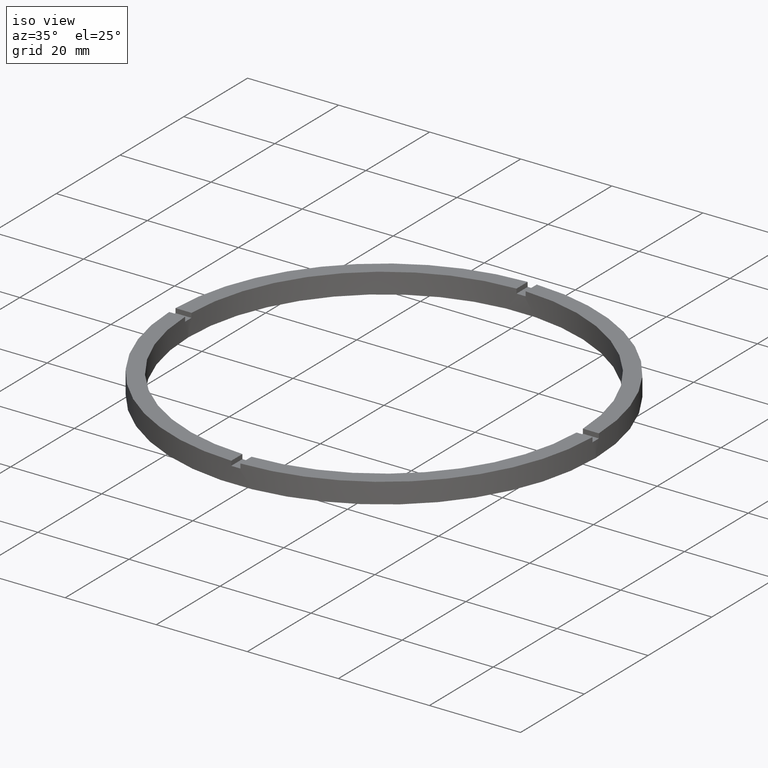
[diagram: clean part render]
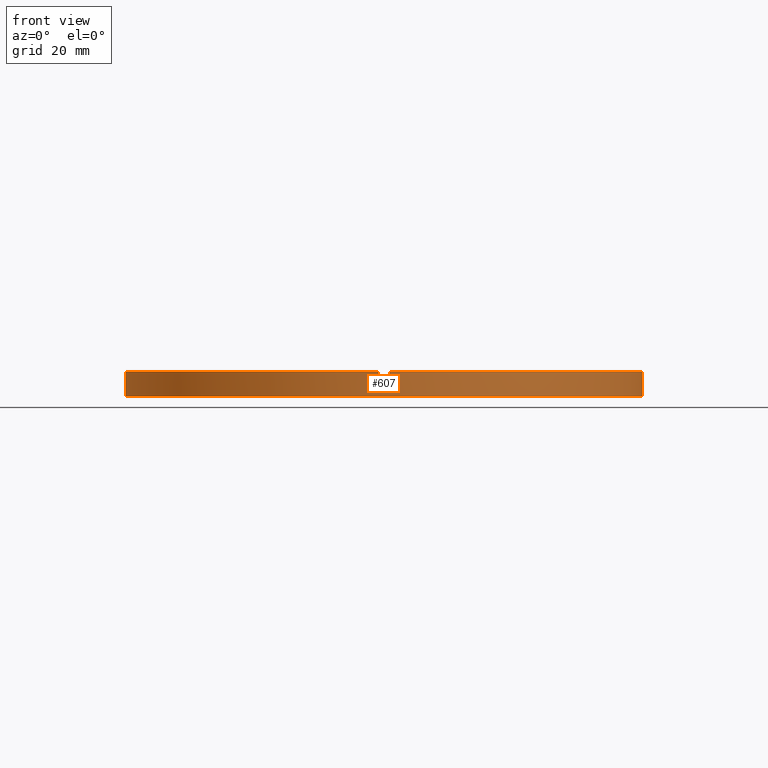
[diagram: tour spotlight — one face highlighted and labeled with its STEP entity id]
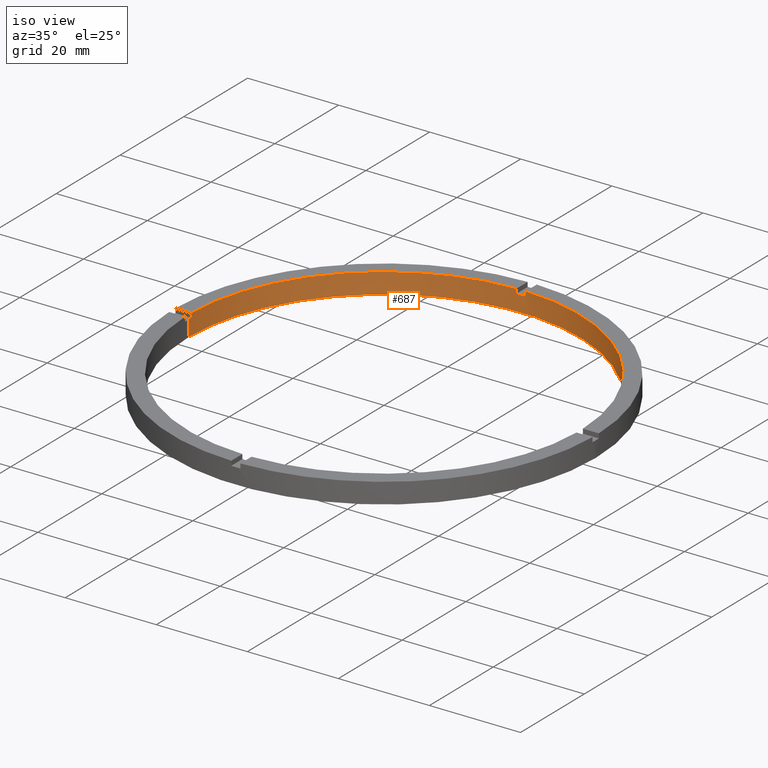
[diagram: tour spotlight — one face highlighted and labeled with its STEP entity id]
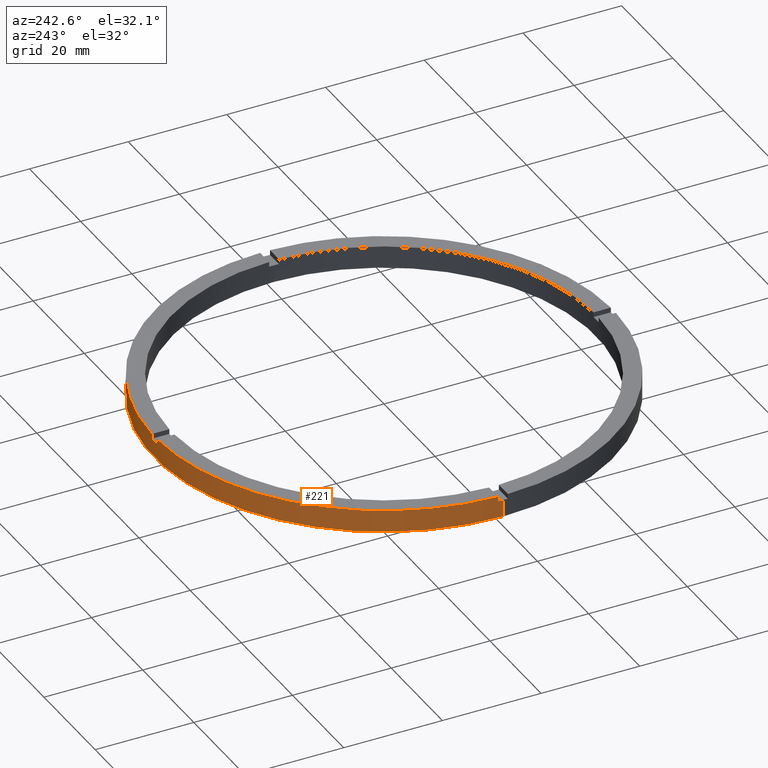
[diagram: tour spotlight — one face highlighted and labeled with its STEP entity id]
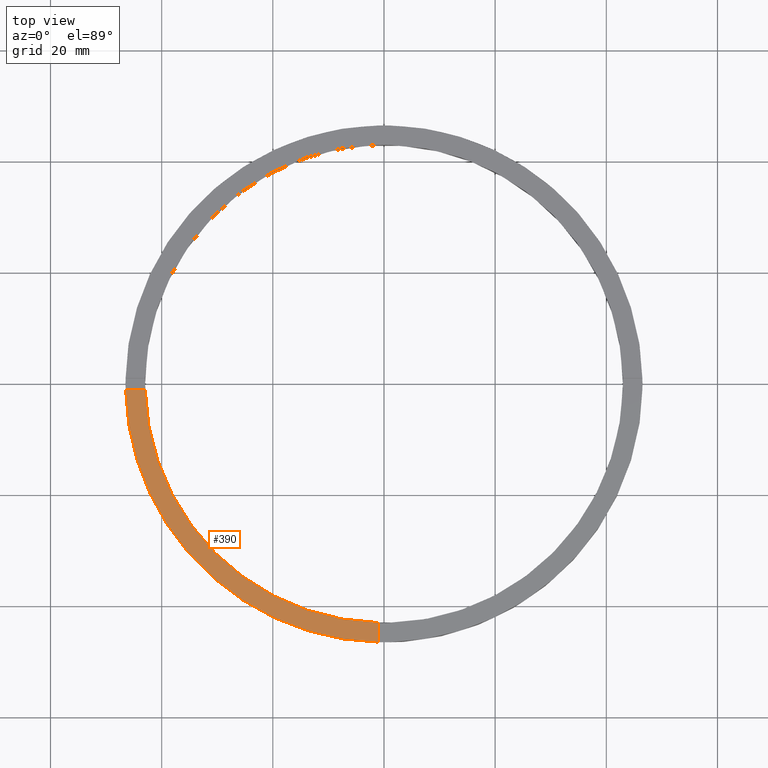
[diagram: tour spotlight — one face highlighted and labeled with its STEP entity id]
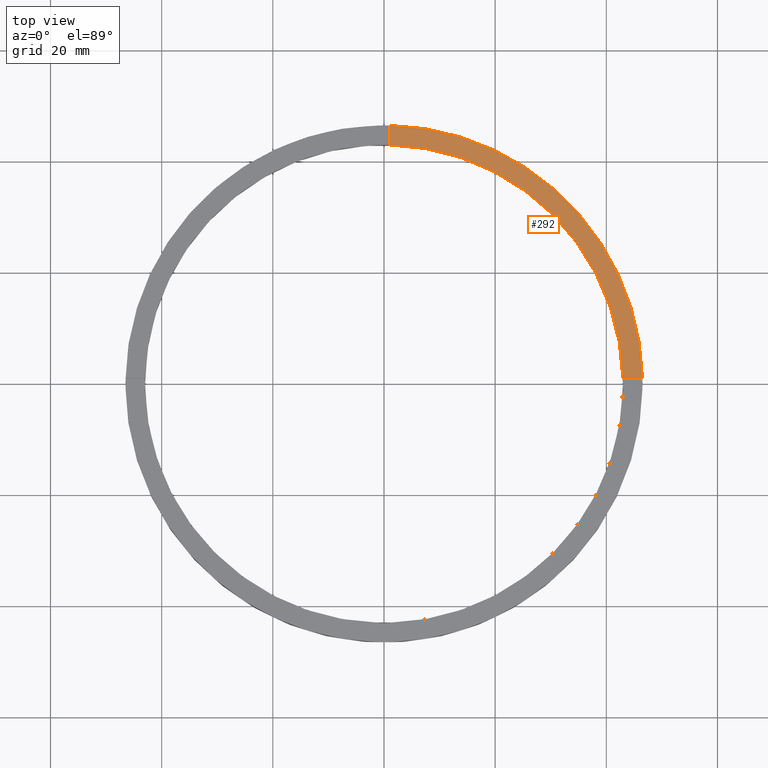
[diagram: tour spotlight — one face highlighted and labeled with its STEP entity id]
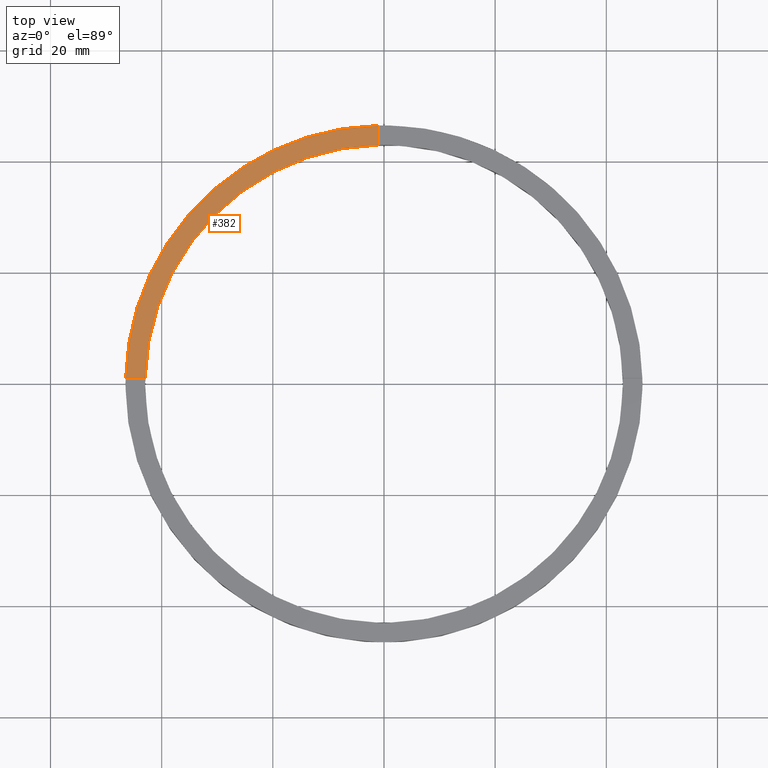
[diagram: tour spotlight — one face highlighted and labeled with its STEP entity id]
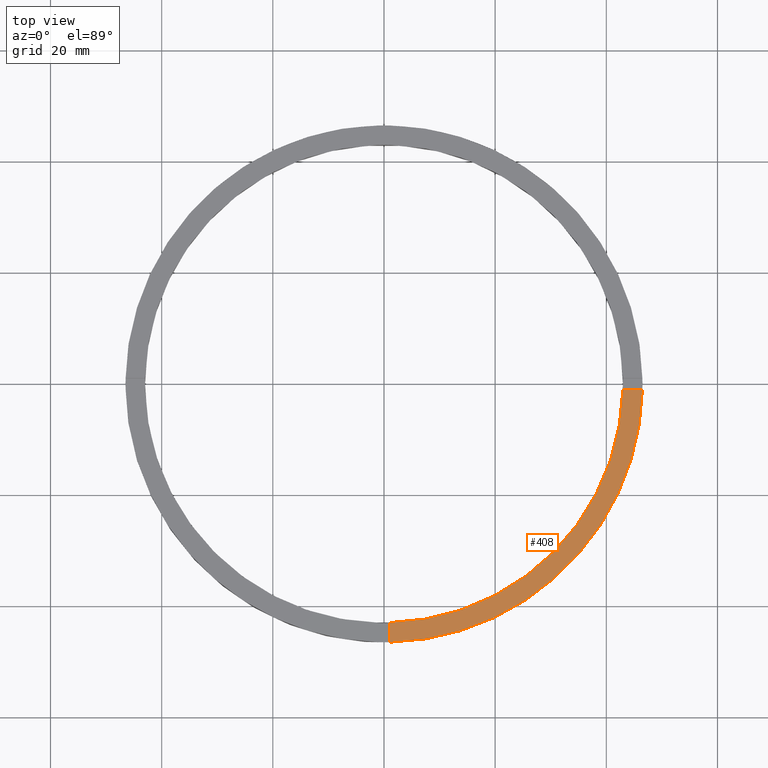
[diagram: tour spotlight — one face highlighted and labeled with its STEP entity id]
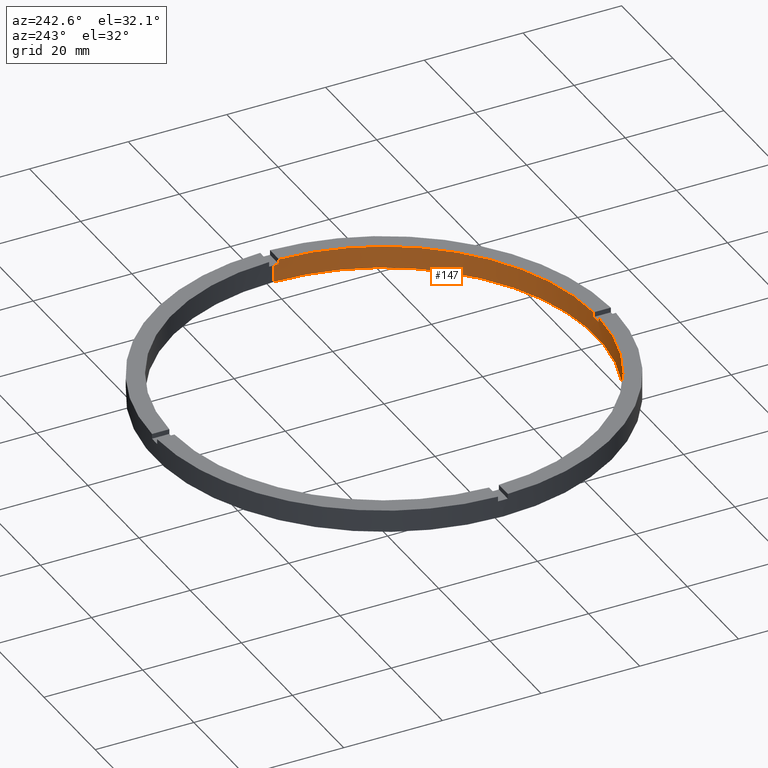
[diagram: tour spotlight — one face highlighted and labeled with its STEP entity id]
A machine part: a face-by-face anatomy tour. The part has 21 B-rep faces; the first image is the clean iso view, then the 8 largest visible faces are spotlighted one at a time (largest first), each with its STEP entity span.

Face 1 — front view, entity #607. In plain terms, the highlighted cylindrical surface (partial cylindrical patch) has radius 46.5 mm, axis along (-0, -0, -1).
Definition (entity closure, byte-faithful):
#6 = LINE ( 'NONE', #756, #260 ) ;
#10 = DIRECTION ( 'NONE',  ( -0.000000000000000000, -0.000000000000000000, -1.000000000000000000 ) ) ;
#14 = DIRECTION ( 'NONE',  ( 1.000000000000000000, 0.000000000000000000, 0.000000000000000000 ) ) ;
#16 = AXIS2_PLACEMENT_3D ( 'NONE', #395, #108, #149 ) ;
#21 = CARTESIAN_POINT ( 'NONE',  ( 46.50000000000000000, 5.694607616035192278E-15, 3.499999999999999556 ) ) ;
#36 = CARTESIAN_POINT ( 'NONE',  ( -1.000000000000157652, -46.48924606831132422, 4.500000000000000000 ) ) ;
#45 = EDGE_CURVE ( 'NONE', #684, #274, #431, .T. ) ;
#49 = DIRECTION ( 'NONE',  ( 1.000000000000000000, 0.000000000000000000, 0.000000000000000000 ) ) ;
#78 = CARTESIAN_POINT ( 'NONE',  ( 0.000000000000000000, 0.000000000000000000, 3.499999999999999556 ) ) ;
#79 = CARTESIAN_POINT ( 'NONE',  ( -46.50000000000000000, 0.000000000000000000, 4.500000000000000000 ) ) ;
#88 = EDGE_CURVE ( 'NONE', #177, #190, #150, .T. ) ;
#95 = EDGE_CURVE ( 'NONE', #164, #142, #682, .T. ) ;
#105 = EDGE_CURVE ( 'NONE', #245, #479, #714, .T. ) ;
#107 = DIRECTION ( 'NONE',  ( 1.000000000000000000, 0.000000000000000000, 0.000000000000000000 ) ) ;
#108 = DIRECTION ( 'NONE',  ( -0.000000000000000000, -0.000000000000000000, -1.000000000000000000 ) ) ;
#109 = DIRECTION ( 'NONE',  ( 0.000000000000000000, 0.000000000000000000, 1.000000000000000000 ) ) ;
#110 = DIRECTION ( 'NONE',  ( 0.000000000000000000, 0.000000000000000000, 1.000000000000000000 ) ) ;
#113 = CIRCLE ( 'NONE', #566, 46.50000000000000000 ) ;
#132 = DIRECTION ( 'NONE',  ( 1.000000000000000000, 0.000000000000000000, 0.000000000000000000 ) ) ;
#133 = DIRECTION ( 'NONE',  ( 0.000000000000000000, 0.000000000000000000, 1.000000000000000000 ) ) ;
#138 = DIRECTION ( 'NONE',  ( 0.000000000000000000, 0.000000000000000000, 1.000000000000000000 ) ) ;
#142 = VERTEX_POINT ( 'NONE', #363 ) ;
#149 = DIRECTION ( 'NONE',  ( -1.000000000000000000, 0.000000000000000000, 0.000000000000000000 ) ) ;
#150 = LINE ( 'NONE', #353, #156 ) ;
#156 = VECTOR ( 'NONE', #650, 1000.000000000000000 ) ;
#164 = VERTEX_POINT ( 'NONE', #440 ) ;
#173 = VERTEX_POINT ( 'NONE', #217 ) ;
#177 = VERTEX_POINT ( 'NONE', #21 ) ;
#188 = DIRECTION ( 'NONE',  ( 1.000000000000000000, 0.000000000000000000, 0.000000000000000000 ) ) ;
#190 = VERTEX_POINT ( 'NONE', #522 ) ;
#205 = ORIENTED_EDGE ( 'NONE', *, *, #653, .T. ) ;
#217 = CARTESIAN_POINT ( 'NONE',  ( 46.48924606831132422, -1.000000000000155875, 4.500000000000000000 ) ) ;
#224 = CYLINDRICAL_SURFACE ( 'NONE', #16, 46.50000000000000000 ) ;
#234 = VECTOR ( 'NONE', #287, 1000.000000000000000 ) ;
#235 = CARTESIAN_POINT ( 'NONE',  ( 0.000000000000000000, 0.000000000000000000, 4.500000000000000000 ) ) ;
#238 = CARTESIAN_POINT ( 'NONE',  ( 46.48924606831132422, -1.000000000000155875, 4.500000000000000000 ) ) ;
#239 = VECTOR ( 'NONE', #110, 1000.000000000000000 ) ;
#242 = VECTOR ( 'NONE', #133, 1000.000000000000000 ) ;
#245 = VERTEX_POINT ( 'NONE', #413 ) ;
#246 = CARTESIAN_POINT ( 'NONE',  ( 0.000000000000000000, 0.000000000000000000, 3.499999999999999556 ) ) ;
#248 = CARTESIAN_POINT ( 'NONE',  ( 0.000000000000000000, 0.000000000000000000, 3.499999999999999556 ) ) ;
#249 = ORIENTED_EDGE ( 'NONE', *, *, #614, .T. ) ;
#250 = LINE ( 'NONE', #757, #234 ) ;
#260 = VECTOR ( 'NONE', #285, 1000.000000000000000 ) ;
#274 = VERTEX_POINT ( 'NONE', #36 ) ;
#283 = ORIENTED_EDGE ( 'NONE', *, *, #352, .T. ) ;
#285 = DIRECTION ( 'NONE',  ( -0.000000000000000000, -0.000000000000000000, -1.000000000000000000 ) ) ;
#287 = DIRECTION ( 'NONE',  ( -0.000000000000000000, -0.000000000000000000, -1.000000000000000000 ) ) ;
#309 = EDGE_CURVE ( 'NONE', #391, #177, #609, .T. ) ;
#325 = VECTOR ( 'NONE', #10, 1000.000000000000000 ) ;
#333 = CIRCLE ( 'NONE', #558, 46.50000000000000000 ) ;
#352 = EDGE_CURVE ( 'NONE', #164, #706, #615, .T. ) ;
#353 = CARTESIAN_POINT ( 'NONE',  ( 46.50000000000000000, 5.694607616035192278E-15, 4.500000000000000000 ) ) ;
#357 = DIRECTION ( 'NONE',  ( 0.000000000000000000, 0.000000000000000000, 1.000000000000000000 ) ) ;
#359 = DIRECTION ( 'NONE',  ( 0.000000000000000000, 0.000000000000000000, 1.000000000000000000 ) ) ;
#363 = CARTESIAN_POINT ( 'NONE',  ( -46.48924606831132422, -1.000000000000030420, 3.499999999999999556 ) ) ;
#364 = ORIENTED_EDGE ( 'NONE', *, *, #45, .F. ) ;
#383 = CARTESIAN_POINT ( 'NONE',  ( 0.9999999999998423483, -46.48924606831132422, 3.499999999999999556 ) ) ;
#385 = CARTESIAN_POINT ( 'NONE',  ( 46.48924606831132422, -1.000000000000155875, 3.499999999999999556 ) ) ;
#388 = EDGE_CURVE ( 'NONE', #706, #190, #333, .T. ) ;
#391 = VERTEX_POINT ( 'NONE', #385 ) ;
#395 = CARTESIAN_POINT ( 'NONE',  ( 0.000000000000000000, 0.000000000000000000, 4.500000000000000000 ) ) ;
#404 = DIRECTION ( 'NONE',  ( -0.000000000000000000, 0.000000000000000000, 1.000000000000000000 ) ) ;
#413 = CARTESIAN_POINT ( 'NONE',  ( -1.000000000000157652, -46.48924606831132422, 3.499999999999999556 ) ) ;
#419 = AXIS2_PLACEMENT_3D ( 'NONE', #78, #357, #107 ) ;
#431 = CIRCLE ( 'NONE', #466, 46.50000000000000000 ) ;
#440 = CARTESIAN_POINT ( 'NONE',  ( -46.50000000000000000, 0.000000000000000000, 3.499999999999999556 ) ) ;
#466 = AXIS2_PLACEMENT_3D ( 'NONE', #235, #109, #481 ) ;
#469 = VERTEX_POINT ( 'NONE', #635 ) ;
#479 = VERTEX_POINT ( 'NONE', #383 ) ;
#481 = DIRECTION ( 'NONE',  ( 1.000000000000000000, 0.000000000000000000, 0.000000000000000000 ) ) ;
#486 = EDGE_CURVE ( 'NONE', #469, #173, #113, .T. ) ;
#494 = LINE ( 'NONE', #551, #239 ) ;
#518 = ORIENTED_EDGE ( 'NONE', *, *, #95, .F. ) ;
#522 = CARTESIAN_POINT ( 'NONE',  ( 46.50000000000000000, 5.694607616035192278E-15, 0.000000000000000000 ) ) ;
#535 = DIRECTION ( 'NONE',  ( 0.000000000000000000, 0.000000000000000000, 1.000000000000000000 ) ) ;
#550 = ORIENTED_EDGE ( 'NONE', *, *, #388, .T. ) ;
#551 = CARTESIAN_POINT ( 'NONE',  ( -1.000000000000157652, -46.48924606831132422, 4.500000000000000000 ) ) ;
#558 = AXIS2_PLACEMENT_3D ( 'NONE', #759, #138, #132 ) ;
#559 = EDGE_CURVE ( 'NONE', #469, #479, #6, .T. ) ;
#566 = AXIS2_PLACEMENT_3D ( 'NONE', #677, #535, #49 ) ;
#577 = AXIS2_PLACEMENT_3D ( 'NONE', #246, #404, #14 ) ;
#607 = ADVANCED_FACE ( 'NONE', ( #769 ), #224, .T. ) ;
#609 = CIRCLE ( 'NONE', #685, 46.50000000000000000 ) ;
#614 = EDGE_CURVE ( 'NONE', #245, #274, #494, .T. ) ;
#615 = LINE ( 'NONE', #79, #325 ) ;
#635 = CARTESIAN_POINT ( 'NONE',  ( 0.9999999999998423483, -46.48924606831132422, 4.500000000000000000 ) ) ;
#650 = DIRECTION ( 'NONE',  ( -0.000000000000000000, -0.000000000000000000, -1.000000000000000000 ) ) ;
#653 = EDGE_CURVE ( 'NONE', #391, #173, #754, .T. ) ;
#660 = ORIENTED_EDGE ( 'NONE', *, *, #486, .F. ) ;
#661 = ORIENTED_EDGE ( 'NONE', *, *, #105, .F. ) ;
#664 = ORIENTED_EDGE ( 'NONE', *, *, #309, .F. ) ;
#673 = CARTESIAN_POINT ( 'NONE',  ( -46.48924606831132422, -1.000000000000030420, 4.500000000000000000 ) ) ;
#677 = CARTESIAN_POINT ( 'NONE',  ( 0.000000000000000000, 0.000000000000000000, 4.500000000000000000 ) ) ;
#682 = CIRCLE ( 'NONE', #419, 46.50000000000000000 ) ;
#684 = VERTEX_POINT ( 'NONE', #673 ) ;
#685 = AXIS2_PLACEMENT_3D ( 'NONE', #248, #359, #188 ) ;
#706 = VERTEX_POINT ( 'NONE', #752 ) ;
#714 = CIRCLE ( 'NONE', #577, 46.50000000000000000 ) ;
#715 = ORIENTED_EDGE ( 'NONE', *, *, #737, .T. ) ;
#731 = EDGE_LOOP ( 'NONE', ( #734, #664, #205, #660, #775, #661, #249, #364, #715, #518, #283, #550 ) ) ;
#734 = ORIENTED_EDGE ( 'NONE', *, *, #88, .F. ) ;
#737 = EDGE_CURVE ( 'NONE', #684, #142, #250, .T. ) ;
#752 = CARTESIAN_POINT ( 'NONE',  ( -46.50000000000000000, 0.000000000000000000, 0.000000000000000000 ) ) ;
#754 = LINE ( 'NONE', #238, #242 ) ;
#756 = CARTESIAN_POINT ( 'NONE',  ( 0.9999999999998423483, -46.48924606831132422, 4.500000000000000000 ) ) ;
#757 = CARTESIAN_POINT ( 'NONE',  ( -46.48924606831132422, -1.000000000000030420, 4.500000000000000000 ) ) ;
#759 = CARTESIAN_POINT ( 'NONE',  ( 0.000000000000000000, 0.000000000000000000, 0.000000000000000000 ) ) ;
#769 = FACE_OUTER_BOUND ( 'NONE', #731, .T. ) ;
#775 = ORIENTED_EDGE ( 'NONE', *, *, #559, .T. ) ;

Face 2 — iso view, entity #687. In plain terms, the highlighted cylindrical surface (partial cylindrical patch) has radius 43 mm, axis along (-0, -0, -1).
Definition (entity closure, byte-faithful):
#4 = EDGE_CURVE ( 'NONE', #716, #425, #410, .T. ) ;
#35 = CARTESIAN_POINT ( 'NONE',  ( 0.000000000000000000, 0.000000000000000000, 4.500000000000000000 ) ) ;
#43 = CARTESIAN_POINT ( 'NONE',  ( 0.000000000000000000, 0.000000000000000000, 3.499999999999999556 ) ) ;
#46 = CARTESIAN_POINT ( 'NONE',  ( -1.000000000000026423, 42.98837052040935447, 3.499999999999999556 ) ) ;
#61 = DIRECTION ( 'NONE',  ( 0.000000000000000000, -0.000000000000000000, 1.000000000000000000 ) ) ;
#74 = CARTESIAN_POINT ( 'NONE',  ( 43.00000000000000000, 5.265981236333618470E-15, 4.500000000000000000 ) ) ;
#94 = DIRECTION ( 'NONE',  ( 0.000000000000000000, 0.000000000000000000, 1.000000000000000000 ) ) ;
#98 = EDGE_CURVE ( 'NONE', #536, #723, #694, .T. ) ;
#101 = DIRECTION ( 'NONE',  ( 1.000000000000000000, 0.000000000000000000, 0.000000000000000000 ) ) ;
#116 = ORIENTED_EDGE ( 'NONE', *, *, #348, .F. ) ;
#126 = CARTESIAN_POINT ( 'NONE',  ( -43.00000000000000000, 0.000000000000000000, 0.000000000000000000 ) ) ;
#131 = DIRECTION ( 'NONE',  ( 1.000000000000000000, 0.000000000000000000, 0.000000000000000000 ) ) ;
#134 = ORIENTED_EDGE ( 'NONE', *, *, #567, .T. ) ;
#135 = ORIENTED_EDGE ( 'NONE', *, *, #152, .F. ) ;
#152 = EDGE_CURVE ( 'NONE', #723, #693, #606, .T. ) ;
#154 = CARTESIAN_POINT ( 'NONE',  ( -43.00000000000000000, 0.000000000000000000, 4.500000000000000000 ) ) ;
#168 = ORIENTED_EDGE ( 'NONE', *, *, #634, .T. ) ;
#182 = CARTESIAN_POINT ( 'NONE',  ( 0.000000000000000000, 0.000000000000000000, 0.000000000000000000 ) ) ;
#201 = ORIENTED_EDGE ( 'NONE', *, *, #426, .T. ) ;
#206 = ORIENTED_EDGE ( 'NONE', *, *, #480, .T. ) ;
#207 = CARTESIAN_POINT ( 'NONE',  ( 42.98837052040935447, 0.9999999999998439026, 4.500000000000000000 ) ) ;
#208 = ORIENTED_EDGE ( 'NONE', *, *, #767, .T. ) ;
#210 = DIRECTION ( 'NONE',  ( 0.000000000000000000, 0.000000000000000000, 1.000000000000000000 ) ) ;
#214 = VERTEX_POINT ( 'NONE', #430 ) ;
#226 = CIRCLE ( 'NONE', #620, 43.00000000000000000 ) ;
#228 = VERTEX_POINT ( 'NONE', #539 ) ;
#229 = CIRCLE ( 'NONE', #412, 43.00000000000000000 ) ;
#255 = CIRCLE ( 'NONE', #361, 43.00000000000000000 ) ;
#256 = AXIS2_PLACEMENT_3D ( 'NONE', #43, #592, #131 ) ;
#264 = EDGE_LOOP ( 'NONE', ( #470, #735, #472, #168, #378, #206, #116, #134, #527, #208, #201, #135 ) ) ;
#276 = DIRECTION ( 'NONE',  ( -1.000000000000000000, 0.000000000000000000, 0.000000000000000000 ) ) ;
#278 = CARTESIAN_POINT ( 'NONE',  ( 0.000000000000000000, 0.000000000000000000, 4.500000000000000000 ) ) ;
#289 = CARTESIAN_POINT ( 'NONE',  ( 43.00000000000000000, 5.265981236333618470E-15, 3.499999999999999556 ) ) ;
#318 = LINE ( 'NONE', #652, #340 ) ;
#319 = LINE ( 'NONE', #467, #598 ) ;
#327 = LINE ( 'NONE', #154, #600 ) ;
#335 = DIRECTION ( 'NONE',  ( 0.000000000000000000, 0.000000000000000000, 1.000000000000000000 ) ) ;
#340 = VECTOR ( 'NONE', #725, 1000.000000000000000 ) ;
#346 = CARTESIAN_POINT ( 'NONE',  ( -42.98837052040935447, 0.9999999999999703570, 4.500000000000000000 ) ) ;
#348 = EDGE_CURVE ( 'NONE', #228, #474, #318, .T. ) ;
#361 = AXIS2_PLACEMENT_3D ( 'NONE', #278, #335, #778 ) ;
#375 = DIRECTION ( 'NONE',  ( -0.000000000000000000, -0.000000000000000000, -1.000000000000000000 ) ) ;
#378 = ORIENTED_EDGE ( 'NONE', *, *, #4, .F. ) ;
#387 = DIRECTION ( 'NONE',  ( -0.000000000000000000, -0.000000000000000000, -1.000000000000000000 ) ) ;
#389 = CARTESIAN_POINT ( 'NONE',  ( 0.000000000000000000, 0.000000000000000000, 3.499999999999999556 ) ) ;
#392 = EDGE_CURVE ( 'NONE', #686, #541, #319, .T. ) ;
#393 = CARTESIAN_POINT ( 'NONE',  ( 0.9999999999999735767, 42.98837052040935447, 4.500000000000000000 ) ) ;
#401 = DIRECTION ( 'NONE',  ( -0.000000000000000000, -0.000000000000000000, -1.000000000000000000 ) ) ;
#410 = LINE ( 'NONE', #393, #676 ) ;
#412 = AXIS2_PLACEMENT_3D ( 'NONE', #649, #476, #719 ) ;
#425 = VERTEX_POINT ( 'NONE', #647 ) ;
#426 = EDGE_CURVE ( 'NONE', #214, #693, #327, .T. ) ;
#430 = CARTESIAN_POINT ( 'NONE',  ( -43.00000000000000000, 0.000000000000000000, 3.499999999999999556 ) ) ;
#441 = VECTOR ( 'NONE', #387, 1000.000000000000000 ) ;
#447 = CARTESIAN_POINT ( 'NONE',  ( 43.00000000000000000, 5.265981236333618470E-15, 0.000000000000000000 ) ) ;
#450 = CARTESIAN_POINT ( 'NONE',  ( -42.98837052040935447, 0.9999999999999703570, 3.499999999999999556 ) ) ;
#455 = CARTESIAN_POINT ( 'NONE',  ( -42.98837052040935447, 0.9999999999999703570, 4.500000000000000000 ) ) ;
#467 = CARTESIAN_POINT ( 'NONE',  ( 42.98837052040935447, 0.9999999999998439026, 4.500000000000000000 ) ) ;
#470 = ORIENTED_EDGE ( 'NONE', *, *, #98, .F. ) ;
#472 = ORIENTED_EDGE ( 'NONE', *, *, #392, .F. ) ;
#474 = VERTEX_POINT ( 'NONE', #46 ) ;
#476 = DIRECTION ( 'NONE',  ( 0.000000000000000000, 0.000000000000000000, 1.000000000000000000 ) ) ;
#480 = EDGE_CURVE ( 'NONE', #716, #474, #640, .T. ) ;
#500 = CYLINDRICAL_SURFACE ( 'NONE', #595, 43.00000000000000000 ) ;
#507 = CIRCLE ( 'NONE', #256, 43.00000000000000000 ) ;
#512 = FACE_OUTER_BOUND ( 'NONE', #264, .T. ) ;
#517 = LINE ( 'NONE', #346, #772 ) ;
#526 = AXIS2_PLACEMENT_3D ( 'NONE', #389, #61, #597 ) ;
#527 = ORIENTED_EDGE ( 'NONE', *, *, #777, .F. ) ;
#536 = VERTEX_POINT ( 'NONE', #289 ) ;
#539 = CARTESIAN_POINT ( 'NONE',  ( -1.000000000000026423, 42.98837052040935447, 4.500000000000000000 ) ) ;
#541 = VERTEX_POINT ( 'NONE', #702 ) ;
#548 = DIRECTION ( 'NONE',  ( 0.000000000000000000, 0.000000000000000000, 1.000000000000000000 ) ) ;
#567 = EDGE_CURVE ( 'NONE', #228, #689, #255, .T. ) ;
#576 = CARTESIAN_POINT ( 'NONE',  ( 0.000000000000000000, 0.000000000000000000, 3.499999999999999556 ) ) ;
#586 = AXIS2_PLACEMENT_3D ( 'NONE', #182, #94, #101 ) ;
#587 = DIRECTION ( 'NONE',  ( 0.000000000000000000, 0.000000000000000000, 1.000000000000000000 ) ) ;
#592 = DIRECTION ( 'NONE',  ( 0.000000000000000000, 0.000000000000000000, 1.000000000000000000 ) ) ;
#595 = AXIS2_PLACEMENT_3D ( 'NONE', #35, #375, #276 ) ;
#597 = DIRECTION ( 'NONE',  ( 1.000000000000000000, 0.000000000000000000, 0.000000000000000000 ) ) ;
#598 = VECTOR ( 'NONE', #641, 1000.000000000000000 ) ;
#600 = VECTOR ( 'NONE', #401, 1000.000000000000000 ) ;
#606 = CIRCLE ( 'NONE', #586, 43.00000000000000000 ) ;
#620 = AXIS2_PLACEMENT_3D ( 'NONE', #576, #587, #668 ) ;
#634 = EDGE_CURVE ( 'NONE', #686, #425, #229, .T. ) ;
#638 = CARTESIAN_POINT ( 'NONE',  ( 0.9999999999999735767, 42.98837052040935447, 3.499999999999999556 ) ) ;
#640 = CIRCLE ( 'NONE', #526, 43.00000000000000000 ) ;
#641 = DIRECTION ( 'NONE',  ( -0.000000000000000000, -0.000000000000000000, -1.000000000000000000 ) ) ;
#647 = CARTESIAN_POINT ( 'NONE',  ( 0.9999999999999735767, 42.98837052040935447, 4.500000000000000000 ) ) ;
#649 = CARTESIAN_POINT ( 'NONE',  ( 0.000000000000000000, 0.000000000000000000, 4.500000000000000000 ) ) ;
#652 = CARTESIAN_POINT ( 'NONE',  ( -1.000000000000026423, 42.98837052040935447, 4.500000000000000000 ) ) ;
#659 = EDGE_CURVE ( 'NONE', #536, #541, #226, .T. ) ;
#668 = DIRECTION ( 'NONE',  ( 1.000000000000000000, 0.000000000000000000, 0.000000000000000000 ) ) ;
#676 = VECTOR ( 'NONE', #548, 1000.000000000000000 ) ;
#686 = VERTEX_POINT ( 'NONE', #207 ) ;
#687 = ADVANCED_FACE ( 'NONE', ( #512 ), #500, .F. ) ;
#689 = VERTEX_POINT ( 'NONE', #455 ) ;
#693 = VERTEX_POINT ( 'NONE', #126 ) ;
#694 = LINE ( 'NONE', #74, #441 ) ;
#702 = CARTESIAN_POINT ( 'NONE',  ( 42.98837052040935447, 0.9999999999998439026, 3.499999999999999556 ) ) ;
#716 = VERTEX_POINT ( 'NONE', #638 ) ;
#719 = DIRECTION ( 'NONE',  ( 1.000000000000000000, 0.000000000000000000, 0.000000000000000000 ) ) ;
#723 = VERTEX_POINT ( 'NONE', #447 ) ;
#725 = DIRECTION ( 'NONE',  ( -0.000000000000000000, -0.000000000000000000, -1.000000000000000000 ) ) ;
#735 = ORIENTED_EDGE ( 'NONE', *, *, #659, .T. ) ;
#742 = VERTEX_POINT ( 'NONE', #450 ) ;
#767 = EDGE_CURVE ( 'NONE', #742, #214, #507, .T. ) ;
#772 = VECTOR ( 'NONE', #210, 1000.000000000000000 ) ;
#777 = EDGE_CURVE ( 'NONE', #742, #689, #517, .T. ) ;
#778 = DIRECTION ( 'NONE',  ( 1.000000000000000000, 0.000000000000000000, 0.000000000000000000 ) ) ;

Face 3 — auxiliary view, entity #221. In plain terms, the highlighted cylindrical surface (partial cylindrical patch) has radius 46.5 mm, axis along (-0, -0, -1).
Definition (entity closure, byte-faithful):
#7 = DIRECTION ( 'NONE',  ( 1.000000000000000000, 0.000000000000000000, 0.000000000000000000 ) ) ;
#10 = DIRECTION ( 'NONE',  ( -0.000000000000000000, -0.000000000000000000, -1.000000000000000000 ) ) ;
#21 = CARTESIAN_POINT ( 'NONE',  ( 46.50000000000000000, 5.694607616035192278E-15, 3.499999999999999556 ) ) ;
#30 = AXIS2_PLACEMENT_3D ( 'NONE', #350, #646, #449 ) ;
#38 = EDGE_CURVE ( 'NONE', #779, #442, #148, .T. ) ;
#48 = DIRECTION ( 'NONE',  ( -0.000000000000000000, -0.000000000000000000, -1.000000000000000000 ) ) ;
#64 = CIRCLE ( 'NONE', #672, 46.50000000000000000 ) ;
#79 = CARTESIAN_POINT ( 'NONE',  ( -46.50000000000000000, 0.000000000000000000, 4.500000000000000000 ) ) ;
#85 = LINE ( 'NONE', #478, #87 ) ;
#87 = VECTOR ( 'NONE', #552, 1000.000000000000000 ) ;
#88 = EDGE_CURVE ( 'NONE', #177, #190, #150, .T. ) ;
#91 = EDGE_CURVE ( 'NONE', #671, #442, #163, .T. ) ;
#99 = CARTESIAN_POINT ( 'NONE',  ( 0.9999999999999735767, 46.48924606831132422, 3.499999999999999556 ) ) ;
#129 = VERTEX_POINT ( 'NONE', #669 ) ;
#139 = EDGE_CURVE ( 'NONE', #267, #402, #456, .T. ) ;
#148 = LINE ( 'NONE', #648, #414 ) ;
#150 = LINE ( 'NONE', #353, #156 ) ;
#156 = VECTOR ( 'NONE', #650, 1000.000000000000000 ) ;
#161 = ORIENTED_EDGE ( 'NONE', *, *, #681, .T. ) ;
#163 = CIRCLE ( 'NONE', #665, 46.50000000000000000 ) ;
#164 = VERTEX_POINT ( 'NONE', #440 ) ;
#177 = VERTEX_POINT ( 'NONE', #21 ) ;
#190 = VERTEX_POINT ( 'NONE', #522 ) ;
#200 = CARTESIAN_POINT ( 'NONE',  ( 0.000000000000000000, 0.000000000000000000, 0.000000000000000000 ) ) ;
#202 = VERTEX_POINT ( 'NONE', #625 ) ;
#221 = ADVANCED_FACE ( 'NONE', ( #601 ), #339, .T. ) ;
#241 = ORIENTED_EDGE ( 'NONE', *, *, #708, .T. ) ;
#244 = LINE ( 'NONE', #269, #498 ) ;
#267 = VERTEX_POINT ( 'NONE', #571 ) ;
#269 = CARTESIAN_POINT ( 'NONE',  ( -46.48924606831132422, 0.9999999999999696909, 4.500000000000000000 ) ) ;
#270 = DIRECTION ( 'NONE',  ( 1.000000000000000000, 0.000000000000000000, 0.000000000000000000 ) ) ;
#279 = DIRECTION ( 'NONE',  ( 0.000000000000000000, 0.000000000000000000, 1.000000000000000000 ) ) ;
#290 = AXIS2_PLACEMENT_3D ( 'NONE', #200, #374, #533 ) ;
#295 = DIRECTION ( 'NONE',  ( 0.000000000000000000, 0.000000000000000000, 1.000000000000000000 ) ) ;
#306 = CARTESIAN_POINT ( 'NONE',  ( 0.000000000000000000, 0.000000000000000000, 3.499999999999999556 ) ) ;
#325 = VECTOR ( 'NONE', #10, 1000.000000000000000 ) ;
#332 = CARTESIAN_POINT ( 'NONE',  ( -46.48924606831132422, 0.9999999999999696909, 4.500000000000000000 ) ) ;
#338 = DIRECTION ( 'NONE',  ( 0.000000000000000000, 0.000000000000000000, 1.000000000000000000 ) ) ;
#339 = CYLINDRICAL_SURFACE ( 'NONE', #627, 46.50000000000000000 ) ;
#349 = DIRECTION ( 'NONE',  ( 0.000000000000000000, 0.000000000000000000, 1.000000000000000000 ) ) ;
#350 = CARTESIAN_POINT ( 'NONE',  ( 0.000000000000000000, 0.000000000000000000, 4.500000000000000000 ) ) ;
#352 = EDGE_CURVE ( 'NONE', #164, #706, #615, .T. ) ;
#353 = CARTESIAN_POINT ( 'NONE',  ( 46.50000000000000000, 5.694607616035192278E-15, 4.500000000000000000 ) ) ;
#374 = DIRECTION ( 'NONE',  ( 0.000000000000000000, 0.000000000000000000, 1.000000000000000000 ) ) ;
#377 = CARTESIAN_POINT ( 'NONE',  ( 0.9999999999999735767, 46.48924606831132422, 4.500000000000000000 ) ) ;
#379 = DIRECTION ( 'NONE',  ( -1.000000000000000000, 0.000000000000000000, 0.000000000000000000 ) ) ;
#402 = VERTEX_POINT ( 'NONE', #435 ) ;
#414 = VECTOR ( 'NONE', #717, 1000.000000000000000 ) ;
#420 = ORIENTED_EDGE ( 'NONE', *, *, #619, .F. ) ;
#435 = CARTESIAN_POINT ( 'NONE',  ( 0.9999999999999735767, 46.48924606831132422, 4.500000000000000000 ) ) ;
#437 = EDGE_CURVE ( 'NONE', #267, #129, #85, .T. ) ;
#438 = ORIENTED_EDGE ( 'NONE', *, *, #139, .F. ) ;
#440 = CARTESIAN_POINT ( 'NONE',  ( -46.50000000000000000, 0.000000000000000000, 3.499999999999999556 ) ) ;
#442 = VERTEX_POINT ( 'NONE', #729 ) ;
#444 = EDGE_CURVE ( 'NONE', #779, #704, #583, .T. ) ;
#449 = DIRECTION ( 'NONE',  ( 1.000000000000000000, 0.000000000000000000, 0.000000000000000000 ) ) ;
#453 = EDGE_CURVE ( 'NONE', #177, #129, #64, .T. ) ;
#456 = CIRCLE ( 'NONE', #546, 46.50000000000000000 ) ;
#475 = ORIENTED_EDGE ( 'NONE', *, *, #352, .F. ) ;
#478 = CARTESIAN_POINT ( 'NONE',  ( 46.48924606831132422, 0.9999999999998441247, 4.500000000000000000 ) ) ;
#483 = ORIENTED_EDGE ( 'NONE', *, *, #88, .T. ) ;
#484 = ORIENTED_EDGE ( 'NONE', *, *, #38, .T. ) ;
#488 = EDGE_LOOP ( 'NONE', ( #703, #483, #241, #475, #420, #161, #666, #484, #721, #701, #438, #758 ) ) ;
#498 = VECTOR ( 'NONE', #338, 1000.000000000000000 ) ;
#504 = VECTOR ( 'NONE', #279, 1000.000000000000000 ) ;
#508 = DIRECTION ( 'NONE',  ( 0.000000000000000000, 0.000000000000000000, 1.000000000000000000 ) ) ;
#515 = CIRCLE ( 'NONE', #290, 46.50000000000000000 ) ;
#522 = CARTESIAN_POINT ( 'NONE',  ( 46.50000000000000000, 5.694607616035192278E-15, 0.000000000000000000 ) ) ;
#528 = CIRCLE ( 'NONE', #580, 46.50000000000000000 ) ;
#531 = CARTESIAN_POINT ( 'NONE',  ( -1.000000000000026423, 46.48924606831132422, 4.500000000000000000 ) ) ;
#533 = DIRECTION ( 'NONE',  ( 1.000000000000000000, 0.000000000000000000, 0.000000000000000000 ) ) ;
#546 = AXIS2_PLACEMENT_3D ( 'NONE', #630, #508, #270 ) ;
#552 = DIRECTION ( 'NONE',  ( -0.000000000000000000, -0.000000000000000000, -1.000000000000000000 ) ) ;
#571 = CARTESIAN_POINT ( 'NONE',  ( 46.48924606831132422, 0.9999999999998441247, 4.500000000000000000 ) ) ;
#579 = CARTESIAN_POINT ( 'NONE',  ( 0.000000000000000000, 0.000000000000000000, 3.499999999999999556 ) ) ;
#580 = AXIS2_PLACEMENT_3D ( 'NONE', #611, #295, #7 ) ;
#583 = CIRCLE ( 'NONE', #30, 46.50000000000000000 ) ;
#601 = FACE_OUTER_BOUND ( 'NONE', #488, .T. ) ;
#602 = DIRECTION ( 'NONE',  ( 0.000000000000000000, -0.000000000000000000, 1.000000000000000000 ) ) ;
#611 = CARTESIAN_POINT ( 'NONE',  ( 0.000000000000000000, 0.000000000000000000, 3.499999999999999556 ) ) ;
#615 = LINE ( 'NONE', #79, #325 ) ;
#617 = DIRECTION ( 'NONE',  ( 1.000000000000000000, 0.000000000000000000, 0.000000000000000000 ) ) ;
#619 = EDGE_CURVE ( 'NONE', #202, #164, #528, .T. ) ;
#625 = CARTESIAN_POINT ( 'NONE',  ( -46.48924606831132422, 0.9999999999999696909, 3.499999999999999556 ) ) ;
#627 = AXIS2_PLACEMENT_3D ( 'NONE', #753, #48, #379 ) ;
#630 = CARTESIAN_POINT ( 'NONE',  ( 0.000000000000000000, 0.000000000000000000, 4.500000000000000000 ) ) ;
#646 = DIRECTION ( 'NONE',  ( 0.000000000000000000, 0.000000000000000000, 1.000000000000000000 ) ) ;
#648 = CARTESIAN_POINT ( 'NONE',  ( -1.000000000000026423, 46.48924606831132422, 4.500000000000000000 ) ) ;
#650 = DIRECTION ( 'NONE',  ( -0.000000000000000000, -0.000000000000000000, -1.000000000000000000 ) ) ;
#665 = AXIS2_PLACEMENT_3D ( 'NONE', #306, #602, #617 ) ;
#666 = ORIENTED_EDGE ( 'NONE', *, *, #444, .F. ) ;
#669 = CARTESIAN_POINT ( 'NONE',  ( 46.48924606831132422, 0.9999999999998441247, 3.499999999999999556 ) ) ;
#671 = VERTEX_POINT ( 'NONE', #99 ) ;
#672 = AXIS2_PLACEMENT_3D ( 'NONE', #579, #349, #770 ) ;
#681 = EDGE_CURVE ( 'NONE', #202, #704, #244, .T. ) ;
#701 = ORIENTED_EDGE ( 'NONE', *, *, #733, .T. ) ;
#703 = ORIENTED_EDGE ( 'NONE', *, *, #453, .F. ) ;
#704 = VERTEX_POINT ( 'NONE', #332 ) ;
#706 = VERTEX_POINT ( 'NONE', #752 ) ;
#708 = EDGE_CURVE ( 'NONE', #190, #706, #515, .T. ) ;
#717 = DIRECTION ( 'NONE',  ( -0.000000000000000000, -0.000000000000000000, -1.000000000000000000 ) ) ;
#721 = ORIENTED_EDGE ( 'NONE', *, *, #91, .F. ) ;
#729 = CARTESIAN_POINT ( 'NONE',  ( -1.000000000000026423, 46.48924606831132422, 3.499999999999999556 ) ) ;
#733 = EDGE_CURVE ( 'NONE', #671, #402, #781, .T. ) ;
#752 = CARTESIAN_POINT ( 'NONE',  ( -46.50000000000000000, 0.000000000000000000, 0.000000000000000000 ) ) ;
#753 = CARTESIAN_POINT ( 'NONE',  ( 0.000000000000000000, 0.000000000000000000, 4.500000000000000000 ) ) ;
#758 = ORIENTED_EDGE ( 'NONE', *, *, #437, .T. ) ;
#770 = DIRECTION ( 'NONE',  ( 1.000000000000000000, 0.000000000000000000, 0.000000000000000000 ) ) ;
#779 = VERTEX_POINT ( 'NONE', #531 ) ;
#781 = LINE ( 'NONE', #377, #504 ) ;

Face 4 — top view, entity #390. In plain terms, the highlighted planar face has unit normal (0, 0, 1).
Definition (entity closure, byte-faithful):
#36 = CARTESIAN_POINT ( 'NONE',  ( -1.000000000000157652, -46.48924606831132422, 4.500000000000000000 ) ) ;
#45 = EDGE_CURVE ( 'NONE', #684, #274, #431, .T. ) ;
#59 = AXIS2_PLACEMENT_3D ( 'NONE', #471, #203, #582 ) ;
#62 = FACE_OUTER_BOUND ( 'NONE', #477, .T. ) ;
#67 = LINE ( 'NONE', #308, #323 ) ;
#109 = DIRECTION ( 'NONE',  ( 0.000000000000000000, 0.000000000000000000, 1.000000000000000000 ) ) ;
#117 = CIRCLE ( 'NONE', #59, 43.00000000000000000 ) ;
#172 = VERTEX_POINT ( 'NONE', #360 ) ;
#194 = EDGE_CURVE ( 'NONE', #684, #521, #608, .T. ) ;
#203 = DIRECTION ( 'NONE',  ( 0.000000000000000000, 0.000000000000000000, 1.000000000000000000 ) ) ;
#211 = CARTESIAN_POINT ( 'NONE',  ( 0.000000000000000000, 0.000000000000000000, 4.500000000000000000 ) ) ;
#235 = CARTESIAN_POINT ( 'NONE',  ( 0.000000000000000000, 0.000000000000000000, 4.500000000000000000 ) ) ;
#274 = VERTEX_POINT ( 'NONE', #36 ) ;
#298 = EDGE_CURVE ( 'NONE', #172, #274, #67, .T. ) ;
#308 = CARTESIAN_POINT ( 'NONE',  ( -1.000000000000158984, -36.50000000000017764, 4.500000000000000000 ) ) ;
#312 = DIRECTION ( 'NONE',  ( 1.301042606982605074E-16, -1.000000000000000000, 0.000000000000000000 ) ) ;
#323 = VECTOR ( 'NONE', #312, 1000.000000000000000 ) ;
#358 = DIRECTION ( 'NONE',  ( 1.000000000000000000, 1.951563910473907735E-16, -0.000000000000000000 ) ) ;
#360 = CARTESIAN_POINT ( 'NONE',  ( -1.000000000000158096, -42.98837052040934736, 4.500000000000000000 ) ) ;
#390 = ADVANCED_FACE ( 'NONE', ( #62 ), #537, .T. ) ;
#431 = CIRCLE ( 'NONE', #466, 46.50000000000000000 ) ;
#451 = ORIENTED_EDGE ( 'NONE', *, *, #298, .F. ) ;
#466 = AXIS2_PLACEMENT_3D ( 'NONE', #235, #109, #481 ) ;
#471 = CARTESIAN_POINT ( 'NONE',  ( 0.000000000000000000, 0.000000000000000000, 4.500000000000000000 ) ) ;
#477 = EDGE_LOOP ( 'NONE', ( #451, #505, #718, #674 ) ) ;
#481 = DIRECTION ( 'NONE',  ( 1.000000000000000000, 0.000000000000000000, 0.000000000000000000 ) ) ;
#491 = EDGE_CURVE ( 'NONE', #521, #172, #117, .T. ) ;
#505 = ORIENTED_EDGE ( 'NONE', *, *, #491, .F. ) ;
#516 = CARTESIAN_POINT ( 'NONE',  ( -36.50000000000018474, -1.000000000000028422, 4.500000000000000000 ) ) ;
#521 = VERTEX_POINT ( 'NONE', #604 ) ;
#532 = DIRECTION ( 'NONE',  ( 0.000000000000000000, 0.000000000000000000, 1.000000000000000000 ) ) ;
#537 = PLANE ( 'NONE',  #773 ) ;
#582 = DIRECTION ( 'NONE',  ( 1.000000000000000000, 0.000000000000000000, 0.000000000000000000 ) ) ;
#588 = VECTOR ( 'NONE', #358, 1000.000000000000000 ) ;
#604 = CARTESIAN_POINT ( 'NONE',  ( -42.98837052040935447, -1.000000000000029754, 4.500000000000000000 ) ) ;
#608 = LINE ( 'NONE', #516, #588 ) ;
#673 = CARTESIAN_POINT ( 'NONE',  ( -46.48924606831132422, -1.000000000000030420, 4.500000000000000000 ) ) ;
#674 = ORIENTED_EDGE ( 'NONE', *, *, #45, .T. ) ;
#683 = DIRECTION ( 'NONE',  ( 1.000000000000000000, 0.000000000000000000, -0.000000000000000000 ) ) ;
#684 = VERTEX_POINT ( 'NONE', #673 ) ;
#718 = ORIENTED_EDGE ( 'NONE', *, *, #194, .F. ) ;
#773 = AXIS2_PLACEMENT_3D ( 'NONE', #211, #532, #683 ) ;

Face 5 — top view, entity #292. In plain terms, the highlighted planar face has unit normal (0, 0, 1).
Definition (entity closure, byte-faithful):
#90 = DIRECTION ( 'NONE',  ( 0.000000000000000000, 0.000000000000000000, 1.000000000000000000 ) ) ;
#125 = DIRECTION ( 'NONE',  ( 1.000000000000000000, 0.000000000000000000, -0.000000000000000000 ) ) ;
#139 = EDGE_CURVE ( 'NONE', #267, #402, #456, .T. ) ;
#140 = ORIENTED_EDGE ( 'NONE', *, *, #634, .F. ) ;
#170 = ORIENTED_EDGE ( 'NONE', *, *, #398, .F. ) ;
#207 = CARTESIAN_POINT ( 'NONE',  ( 42.98837052040935447, 0.9999999999998439026, 4.500000000000000000 ) ) ;
#216 = ORIENTED_EDGE ( 'NONE', *, *, #501, .F. ) ;
#229 = CIRCLE ( 'NONE', #412, 43.00000000000000000 ) ;
#258 = PLANE ( 'NONE',  #651 ) ;
#267 = VERTEX_POINT ( 'NONE', #571 ) ;
#270 = DIRECTION ( 'NONE',  ( 1.000000000000000000, 0.000000000000000000, 0.000000000000000000 ) ) ;
#273 = CARTESIAN_POINT ( 'NONE',  ( 36.49999999999999289, 0.9999999999998434586, 4.500000000000000000 ) ) ;
#292 = ADVANCED_FACE ( 'NONE', ( #336 ), #258, .T. ) ;
#313 = VECTOR ( 'NONE', #780, 1000.000000000000000 ) ;
#336 = FACE_OUTER_BOUND ( 'NONE', #499, .T. ) ;
#368 = LINE ( 'NONE', #273, #644 ) ;
#398 = EDGE_CURVE ( 'NONE', #425, #402, #612, .T. ) ;
#402 = VERTEX_POINT ( 'NONE', #435 ) ;
#412 = AXIS2_PLACEMENT_3D ( 'NONE', #649, #476, #719 ) ;
#425 = VERTEX_POINT ( 'NONE', #647 ) ;
#435 = CARTESIAN_POINT ( 'NONE',  ( 0.9999999999999735767, 46.48924606831132422, 4.500000000000000000 ) ) ;
#456 = CIRCLE ( 'NONE', #546, 46.50000000000000000 ) ;
#462 = ORIENTED_EDGE ( 'NONE', *, *, #139, .T. ) ;
#476 = DIRECTION ( 'NONE',  ( 0.000000000000000000, 0.000000000000000000, 1.000000000000000000 ) ) ;
#499 = EDGE_LOOP ( 'NONE', ( #170, #140, #216, #462 ) ) ;
#501 = EDGE_CURVE ( 'NONE', #267, #686, #368, .T. ) ;
#508 = DIRECTION ( 'NONE',  ( 0.000000000000000000, 0.000000000000000000, 1.000000000000000000 ) ) ;
#544 = DIRECTION ( 'NONE',  ( -1.000000000000000000, -6.505213034913025371E-17, -0.000000000000000000 ) ) ;
#546 = AXIS2_PLACEMENT_3D ( 'NONE', #630, #508, #270 ) ;
#553 = CARTESIAN_POINT ( 'NONE',  ( 0.000000000000000000, 0.000000000000000000, 4.500000000000000000 ) ) ;
#571 = CARTESIAN_POINT ( 'NONE',  ( 46.48924606831132422, 0.9999999999998441247, 4.500000000000000000 ) ) ;
#612 = LINE ( 'NONE', #705, #313 ) ;
#630 = CARTESIAN_POINT ( 'NONE',  ( 0.000000000000000000, 0.000000000000000000, 4.500000000000000000 ) ) ;
#634 = EDGE_CURVE ( 'NONE', #686, #425, #229, .T. ) ;
#644 = VECTOR ( 'NONE', #544, 1000.000000000000000 ) ;
#647 = CARTESIAN_POINT ( 'NONE',  ( 0.9999999999999735767, 42.98837052040935447, 4.500000000000000000 ) ) ;
#649 = CARTESIAN_POINT ( 'NONE',  ( 0.000000000000000000, 0.000000000000000000, 4.500000000000000000 ) ) ;
#651 = AXIS2_PLACEMENT_3D ( 'NONE', #553, #90, #125 ) ;
#686 = VERTEX_POINT ( 'NONE', #207 ) ;
#705 = CARTESIAN_POINT ( 'NONE',  ( 0.9999999999999735767, 36.50000000000000000, 4.500000000000000000 ) ) ;
#719 = DIRECTION ( 'NONE',  ( 1.000000000000000000, 0.000000000000000000, 0.000000000000000000 ) ) ;
#780 = DIRECTION ( 'NONE',  ( 0.000000000000000000, 1.000000000000000000, 0.000000000000000000 ) ) ;

Face 6 — top view, entity #382. In plain terms, the highlighted planar face has unit normal (0, 0, 1).
Definition (entity closure, byte-faithful):
#5 = VECTOR ( 'NONE', #100, 1000.000000000000000 ) ;
#30 = AXIS2_PLACEMENT_3D ( 'NONE', #350, #646, #449 ) ;
#42 = CARTESIAN_POINT ( 'NONE',  ( -1.000000000000026423, 36.50000000000000000, 4.500000000000000000 ) ) ;
#52 = DIRECTION ( 'NONE',  ( 0.000000000000000000, 0.000000000000000000, 1.000000000000000000 ) ) ;
#76 = FACE_OUTER_BOUND ( 'NONE', #181, .T. ) ;
#100 = DIRECTION ( 'NONE',  ( -0.000000000000000000, -1.000000000000000000, -0.000000000000000000 ) ) ;
#118 = LINE ( 'NONE', #42, #5 ) ;
#157 = DIRECTION ( 'NONE',  ( -1.000000000000000000, -1.951563910473907735E-16, 0.000000000000000000 ) ) ;
#166 = PLANE ( 'NONE',  #386 ) ;
#181 = EDGE_LOOP ( 'NONE', ( #751, #424, #513, #439 ) ) ;
#228 = VERTEX_POINT ( 'NONE', #539 ) ;
#247 = VECTOR ( 'NONE', #157, 1000.000000000000000 ) ;
#255 = CIRCLE ( 'NONE', #361, 43.00000000000000000 ) ;
#278 = CARTESIAN_POINT ( 'NONE',  ( 0.000000000000000000, 0.000000000000000000, 4.500000000000000000 ) ) ;
#332 = CARTESIAN_POINT ( 'NONE',  ( -46.48924606831132422, 0.9999999999999696909, 4.500000000000000000 ) ) ;
#335 = DIRECTION ( 'NONE',  ( 0.000000000000000000, 0.000000000000000000, 1.000000000000000000 ) ) ;
#350 = CARTESIAN_POINT ( 'NONE',  ( 0.000000000000000000, 0.000000000000000000, 4.500000000000000000 ) ) ;
#354 = CARTESIAN_POINT ( 'NONE',  ( -36.50000000000018474, 0.9999999999999715783, 4.500000000000000000 ) ) ;
#361 = AXIS2_PLACEMENT_3D ( 'NONE', #278, #335, #778 ) ;
#382 = ADVANCED_FACE ( 'NONE', ( #76 ), #166, .T. ) ;
#386 = AXIS2_PLACEMENT_3D ( 'NONE', #487, #52, #679 ) ;
#424 = ORIENTED_EDGE ( 'NONE', *, *, #444, .T. ) ;
#439 = ORIENTED_EDGE ( 'NONE', *, *, #567, .F. ) ;
#444 = EDGE_CURVE ( 'NONE', #779, #704, #583, .T. ) ;
#449 = DIRECTION ( 'NONE',  ( 1.000000000000000000, 0.000000000000000000, 0.000000000000000000 ) ) ;
#455 = CARTESIAN_POINT ( 'NONE',  ( -42.98837052040935447, 0.9999999999999703570, 4.500000000000000000 ) ) ;
#487 = CARTESIAN_POINT ( 'NONE',  ( 0.000000000000000000, 0.000000000000000000, 4.500000000000000000 ) ) ;
#496 = LINE ( 'NONE', #354, #247 ) ;
#513 = ORIENTED_EDGE ( 'NONE', *, *, #631, .F. ) ;
#531 = CARTESIAN_POINT ( 'NONE',  ( -1.000000000000026423, 46.48924606831132422, 4.500000000000000000 ) ) ;
#538 = EDGE_CURVE ( 'NONE', #779, #228, #118, .T. ) ;
#539 = CARTESIAN_POINT ( 'NONE',  ( -1.000000000000026423, 42.98837052040935447, 4.500000000000000000 ) ) ;
#567 = EDGE_CURVE ( 'NONE', #228, #689, #255, .T. ) ;
#583 = CIRCLE ( 'NONE', #30, 46.50000000000000000 ) ;
#631 = EDGE_CURVE ( 'NONE', #689, #704, #496, .T. ) ;
#646 = DIRECTION ( 'NONE',  ( 0.000000000000000000, 0.000000000000000000, 1.000000000000000000 ) ) ;
#679 = DIRECTION ( 'NONE',  ( 1.000000000000000000, 0.000000000000000000, -0.000000000000000000 ) ) ;
#689 = VERTEX_POINT ( 'NONE', #455 ) ;
#704 = VERTEX_POINT ( 'NONE', #332 ) ;
#751 = ORIENTED_EDGE ( 'NONE', *, *, #538, .F. ) ;
#778 = DIRECTION ( 'NONE',  ( 1.000000000000000000, 0.000000000000000000, 0.000000000000000000 ) ) ;
#779 = VERTEX_POINT ( 'NONE', #531 ) ;

Face 7 — top view, entity #408. In plain terms, the highlighted planar face has unit normal (0, 0, 1).
Definition (entity closure, byte-faithful):
#11 = EDGE_LOOP ( 'NONE', ( #199, #195, #457, #155 ) ) ;
#23 = DIRECTION ( 'NONE',  ( 0.000000000000000000, 0.000000000000000000, 1.000000000000000000 ) ) ;
#31 = DIRECTION ( 'NONE',  ( 1.000000000000000000, 0.000000000000000000, 0.000000000000000000 ) ) ;
#49 = DIRECTION ( 'NONE',  ( 1.000000000000000000, 0.000000000000000000, 0.000000000000000000 ) ) ;
#80 = LINE ( 'NONE', #776, #585 ) ;
#84 = LINE ( 'NONE', #284, #584 ) ;
#113 = CIRCLE ( 'NONE', #566, 46.50000000000000000 ) ;
#153 = EDGE_CURVE ( 'NONE', #469, #720, #84, .T. ) ;
#155 = ORIENTED_EDGE ( 'NONE', *, *, #486, .T. ) ;
#160 = DIRECTION ( 'NONE',  ( 1.000000000000000000, 0.000000000000000000, -0.000000000000000000 ) ) ;
#173 = VERTEX_POINT ( 'NONE', #217 ) ;
#195 = ORIENTED_EDGE ( 'NONE', *, *, #277, .F. ) ;
#199 = ORIENTED_EDGE ( 'NONE', *, *, #240, .F. ) ;
#217 = CARTESIAN_POINT ( 'NONE',  ( 46.48924606831132422, -1.000000000000155875, 4.500000000000000000 ) ) ;
#240 = EDGE_CURVE ( 'NONE', #370, #173, #80, .T. ) ;
#277 = EDGE_CURVE ( 'NONE', #720, #370, #596, .T. ) ;
#284 = CARTESIAN_POINT ( 'NONE',  ( 0.9999999999998411271, -36.50000000000017764, 4.500000000000000000 ) ) ;
#300 = AXIS2_PLACEMENT_3D ( 'NONE', #736, #23, #31 ) ;
#311 = DIRECTION ( 'NONE',  ( 1.000000000000000000, 6.505213034913025371E-17, 0.000000000000000000 ) ) ;
#326 = CARTESIAN_POINT ( 'NONE',  ( 0.9999999999998419042, -42.98837052040935447, 4.500000000000000000 ) ) ;
#342 = FACE_OUTER_BOUND ( 'NONE', #11, .T. ) ;
#356 = CARTESIAN_POINT ( 'NONE',  ( 0.000000000000000000, 0.000000000000000000, 4.500000000000000000 ) ) ;
#370 = VERTEX_POINT ( 'NONE', #405 ) ;
#405 = CARTESIAN_POINT ( 'NONE',  ( 42.98837052040934736, -1.000000000000156097, 4.500000000000000000 ) ) ;
#406 = DIRECTION ( 'NONE',  ( 0.000000000000000000, 0.000000000000000000, 1.000000000000000000 ) ) ;
#408 = ADVANCED_FACE ( 'NONE', ( #342 ), #749, .T. ) ;
#418 = DIRECTION ( 'NONE',  ( -1.301042606982605074E-16, 1.000000000000000000, -0.000000000000000000 ) ) ;
#457 = ORIENTED_EDGE ( 'NONE', *, *, #153, .F. ) ;
#469 = VERTEX_POINT ( 'NONE', #635 ) ;
#486 = EDGE_CURVE ( 'NONE', #469, #173, #113, .T. ) ;
#535 = DIRECTION ( 'NONE',  ( 0.000000000000000000, 0.000000000000000000, 1.000000000000000000 ) ) ;
#566 = AXIS2_PLACEMENT_3D ( 'NONE', #677, #535, #49 ) ;
#584 = VECTOR ( 'NONE', #418, 1000.000000000000000 ) ;
#585 = VECTOR ( 'NONE', #311, 1000.000000000000000 ) ;
#596 = CIRCLE ( 'NONE', #300, 43.00000000000000000 ) ;
#635 = CARTESIAN_POINT ( 'NONE',  ( 0.9999999999998423483, -46.48924606831132422, 4.500000000000000000 ) ) ;
#645 = AXIS2_PLACEMENT_3D ( 'NONE', #356, #406, #160 ) ;
#677 = CARTESIAN_POINT ( 'NONE',  ( 0.000000000000000000, 0.000000000000000000, 4.500000000000000000 ) ) ;
#720 = VERTEX_POINT ( 'NONE', #326 ) ;
#736 = CARTESIAN_POINT ( 'NONE',  ( 0.000000000000000000, 0.000000000000000000, 4.500000000000000000 ) ) ;
#749 = PLANE ( 'NONE',  #645 ) ;
#776 = CARTESIAN_POINT ( 'NONE',  ( 36.49999999999999289, -1.000000000000156541, 4.500000000000000000 ) ) ;

Face 8 — auxiliary view, entity #147. In plain terms, the highlighted cylindrical surface (partial cylindrical patch) has radius 43 mm, axis along (-0, -0, -1).
Definition (entity closure, byte-faithful):
#22 = DIRECTION ( 'NONE',  ( 1.000000000000000000, 0.000000000000000000, 0.000000000000000000 ) ) ;
#23 = DIRECTION ( 'NONE',  ( 0.000000000000000000, 0.000000000000000000, 1.000000000000000000 ) ) ;
#31 = DIRECTION ( 'NONE',  ( 1.000000000000000000, 0.000000000000000000, 0.000000000000000000 ) ) ;
#55 = DIRECTION ( 'NONE',  ( -0.000000000000000000, -0.000000000000000000, -1.000000000000000000 ) ) ;
#59 = AXIS2_PLACEMENT_3D ( 'NONE', #471, #203, #582 ) ;
#63 = EDGE_CURVE ( 'NONE', #521, #261, #174, .T. ) ;
#74 = CARTESIAN_POINT ( 'NONE',  ( 43.00000000000000000, 5.265981236333618470E-15, 4.500000000000000000 ) ) ;
#77 = LINE ( 'NONE', #124, #81 ) ;
#81 = VECTOR ( 'NONE', #55, 1000.000000000000000 ) ;
#97 = DIRECTION ( 'NONE',  ( -0.000000000000000000, 0.000000000000000000, 1.000000000000000000 ) ) ;
#98 = EDGE_CURVE ( 'NONE', #536, #723, #694, .T. ) ;
#103 = DIRECTION ( 'NONE',  ( -1.000000000000000000, 0.000000000000000000, 0.000000000000000000 ) ) ;
#111 = AXIS2_PLACEMENT_3D ( 'NONE', #220, #265, #103 ) ;
#115 = CARTESIAN_POINT ( 'NONE',  ( 0.000000000000000000, 0.000000000000000000, 3.499999999999999556 ) ) ;
#117 = CIRCLE ( 'NONE', #59, 43.00000000000000000 ) ;
#119 = EDGE_CURVE ( 'NONE', #214, #261, #445, .T. ) ;
#122 = EDGE_CURVE ( 'NONE', #458, #536, #184, .T. ) ;
#124 = CARTESIAN_POINT ( 'NONE',  ( 0.9999999999998419042, -42.98837052040935447, 4.500000000000000000 ) ) ;
#126 = CARTESIAN_POINT ( 'NONE',  ( -43.00000000000000000, 0.000000000000000000, 0.000000000000000000 ) ) ;
#130 = DIRECTION ( 'NONE',  ( 1.000000000000000000, 0.000000000000000000, 0.000000000000000000 ) ) ;
#147 = ADVANCED_FACE ( 'NONE', ( #616 ), #316, .F. ) ;
#154 = CARTESIAN_POINT ( 'NONE',  ( -43.00000000000000000, 0.000000000000000000, 4.500000000000000000 ) ) ;
#165 = ORIENTED_EDGE ( 'NONE', *, *, #63, .F. ) ;
#167 = AXIS2_PLACEMENT_3D ( 'NONE', #186, #275, #22 ) ;
#172 = VERTEX_POINT ( 'NONE', #360 ) ;
#174 = LINE ( 'NONE', #543, #680 ) ;
#183 = EDGE_CURVE ( 'NONE', #461, #172, #334, .T. ) ;
#184 = CIRCLE ( 'NONE', #167, 43.00000000000000000 ) ;
#186 = CARTESIAN_POINT ( 'NONE',  ( 0.000000000000000000, 0.000000000000000000, 3.499999999999999556 ) ) ;
#192 = ORIENTED_EDGE ( 'NONE', *, *, #288, .F. ) ;
#193 = CARTESIAN_POINT ( 'NONE',  ( -1.000000000000158096, -42.98837052040934736, 4.500000000000000000 ) ) ;
#197 = ORIENTED_EDGE ( 'NONE', *, *, #98, .T. ) ;
#198 = CARTESIAN_POINT ( 'NONE',  ( 42.98837052040934736, -1.000000000000156097, 4.500000000000000000 ) ) ;
#203 = DIRECTION ( 'NONE',  ( 0.000000000000000000, 0.000000000000000000, 1.000000000000000000 ) ) ;
#214 = VERTEX_POINT ( 'NONE', #430 ) ;
#218 = CARTESIAN_POINT ( 'NONE',  ( -1.000000000000158096, -42.98837052040934736, 3.499999999999999556 ) ) ;
#220 = CARTESIAN_POINT ( 'NONE',  ( 0.000000000000000000, 0.000000000000000000, 4.500000000000000000 ) ) ;
#231 = EDGE_CURVE ( 'NONE', #720, #262, #77, .T. ) ;
#243 = ORIENTED_EDGE ( 'NONE', *, *, #314, .F. ) ;
#252 = CIRCLE ( 'NONE', #331, 43.00000000000000000 ) ;
#254 = EDGE_LOOP ( 'NONE', ( #697, #197, #192, #768, #485, #165, #429, #761, #502, #766, #432, #243 ) ) ;
#261 = VERTEX_POINT ( 'NONE', #738 ) ;
#262 = VERTEX_POINT ( 'NONE', #623 ) ;
#265 = DIRECTION ( 'NONE',  ( -0.000000000000000000, -0.000000000000000000, -1.000000000000000000 ) ) ;
#268 = AXIS2_PLACEMENT_3D ( 'NONE', #618, #423, #556 ) ;
#275 = DIRECTION ( 'NONE',  ( 0.000000000000000000, 0.000000000000000000, 1.000000000000000000 ) ) ;
#277 = EDGE_CURVE ( 'NONE', #720, #370, #596, .T. ) ;
#288 = EDGE_CURVE ( 'NONE', #693, #723, #320, .T. ) ;
#289 = CARTESIAN_POINT ( 'NONE',  ( 43.00000000000000000, 5.265981236333618470E-15, 3.499999999999999556 ) ) ;
#300 = AXIS2_PLACEMENT_3D ( 'NONE', #736, #23, #31 ) ;
#314 = EDGE_CURVE ( 'NONE', #458, #370, #341, .T. ) ;
#316 = CYLINDRICAL_SURFACE ( 'NONE', #111, 43.00000000000000000 ) ;
#320 = CIRCLE ( 'NONE', #268, 43.00000000000000000 ) ;
#326 = CARTESIAN_POINT ( 'NONE',  ( 0.9999999999998419042, -42.98837052040935447, 4.500000000000000000 ) ) ;
#327 = LINE ( 'NONE', #154, #600 ) ;
#331 = AXIS2_PLACEMENT_3D ( 'NONE', #345, #97, #130 ) ;
#334 = LINE ( 'NONE', #193, #594 ) ;
#337 = VECTOR ( 'NONE', #569, 1000.000000000000000 ) ;
#341 = LINE ( 'NONE', #198, #337 ) ;
#344 = DIRECTION ( 'NONE',  ( 0.000000000000000000, 0.000000000000000000, 1.000000000000000000 ) ) ;
#345 = CARTESIAN_POINT ( 'NONE',  ( 0.000000000000000000, 0.000000000000000000, 3.499999999999999556 ) ) ;
#355 = DIRECTION ( 'NONE',  ( -0.000000000000000000, -0.000000000000000000, -1.000000000000000000 ) ) ;
#360 = CARTESIAN_POINT ( 'NONE',  ( -1.000000000000158096, -42.98837052040934736, 4.500000000000000000 ) ) ;
#370 = VERTEX_POINT ( 'NONE', #405 ) ;
#373 = AXIS2_PLACEMENT_3D ( 'NONE', #115, #621, #510 ) ;
#387 = DIRECTION ( 'NONE',  ( -0.000000000000000000, -0.000000000000000000, -1.000000000000000000 ) ) ;
#401 = DIRECTION ( 'NONE',  ( -0.000000000000000000, -0.000000000000000000, -1.000000000000000000 ) ) ;
#405 = CARTESIAN_POINT ( 'NONE',  ( 42.98837052040934736, -1.000000000000156097, 4.500000000000000000 ) ) ;
#423 = DIRECTION ( 'NONE',  ( 0.000000000000000000, 0.000000000000000000, 1.000000000000000000 ) ) ;
#426 = EDGE_CURVE ( 'NONE', #214, #693, #327, .T. ) ;
#429 = ORIENTED_EDGE ( 'NONE', *, *, #491, .T. ) ;
#430 = CARTESIAN_POINT ( 'NONE',  ( -43.00000000000000000, 0.000000000000000000, 3.499999999999999556 ) ) ;
#432 = ORIENTED_EDGE ( 'NONE', *, *, #277, .T. ) ;
#441 = VECTOR ( 'NONE', #387, 1000.000000000000000 ) ;
#445 = CIRCLE ( 'NONE', #373, 43.00000000000000000 ) ;
#447 = CARTESIAN_POINT ( 'NONE',  ( 43.00000000000000000, 5.265981236333618470E-15, 0.000000000000000000 ) ) ;
#458 = VERTEX_POINT ( 'NONE', #525 ) ;
#461 = VERTEX_POINT ( 'NONE', #218 ) ;
#471 = CARTESIAN_POINT ( 'NONE',  ( 0.000000000000000000, 0.000000000000000000, 4.500000000000000000 ) ) ;
#485 = ORIENTED_EDGE ( 'NONE', *, *, #119, .T. ) ;
#491 = EDGE_CURVE ( 'NONE', #521, #172, #117, .T. ) ;
#502 = ORIENTED_EDGE ( 'NONE', *, *, #564, .T. ) ;
#510 = DIRECTION ( 'NONE',  ( 1.000000000000000000, 0.000000000000000000, 0.000000000000000000 ) ) ;
#521 = VERTEX_POINT ( 'NONE', #604 ) ;
#525 = CARTESIAN_POINT ( 'NONE',  ( 42.98837052040934736, -1.000000000000156097, 3.499999999999999556 ) ) ;
#536 = VERTEX_POINT ( 'NONE', #289 ) ;
#543 = CARTESIAN_POINT ( 'NONE',  ( -42.98837052040935447, -1.000000000000029754, 4.500000000000000000 ) ) ;
#556 = DIRECTION ( 'NONE',  ( 1.000000000000000000, 0.000000000000000000, 0.000000000000000000 ) ) ;
#564 = EDGE_CURVE ( 'NONE', #461, #262, #252, .T. ) ;
#569 = DIRECTION ( 'NONE',  ( 0.000000000000000000, 0.000000000000000000, 1.000000000000000000 ) ) ;
#582 = DIRECTION ( 'NONE',  ( 1.000000000000000000, 0.000000000000000000, 0.000000000000000000 ) ) ;
#594 = VECTOR ( 'NONE', #344, 1000.000000000000000 ) ;
#596 = CIRCLE ( 'NONE', #300, 43.00000000000000000 ) ;
#600 = VECTOR ( 'NONE', #401, 1000.000000000000000 ) ;
#604 = CARTESIAN_POINT ( 'NONE',  ( -42.98837052040935447, -1.000000000000029754, 4.500000000000000000 ) ) ;
#616 = FACE_OUTER_BOUND ( 'NONE', #254, .T. ) ;
#618 = CARTESIAN_POINT ( 'NONE',  ( 0.000000000000000000, 0.000000000000000000, 0.000000000000000000 ) ) ;
#621 = DIRECTION ( 'NONE',  ( 0.000000000000000000, 0.000000000000000000, 1.000000000000000000 ) ) ;
#623 = CARTESIAN_POINT ( 'NONE',  ( 0.9999999999998419042, -42.98837052040935447, 3.499999999999999556 ) ) ;
#680 = VECTOR ( 'NONE', #355, 1000.000000000000000 ) ;
#693 = VERTEX_POINT ( 'NONE', #126 ) ;
#694 = LINE ( 'NONE', #74, #441 ) ;
#697 = ORIENTED_EDGE ( 'NONE', *, *, #122, .T. ) ;
#720 = VERTEX_POINT ( 'NONE', #326 ) ;
#723 = VERTEX_POINT ( 'NONE', #447 ) ;
#736 = CARTESIAN_POINT ( 'NONE',  ( 0.000000000000000000, 0.000000000000000000, 4.500000000000000000 ) ) ;
#738 = CARTESIAN_POINT ( 'NONE',  ( -42.98837052040935447, -1.000000000000029754, 3.499999999999999556 ) ) ;
#761 = ORIENTED_EDGE ( 'NONE', *, *, #183, .F. ) ;
#766 = ORIENTED_EDGE ( 'NONE', *, *, #231, .F. ) ;
#768 = ORIENTED_EDGE ( 'NONE', *, *, #426, .F. ) ;